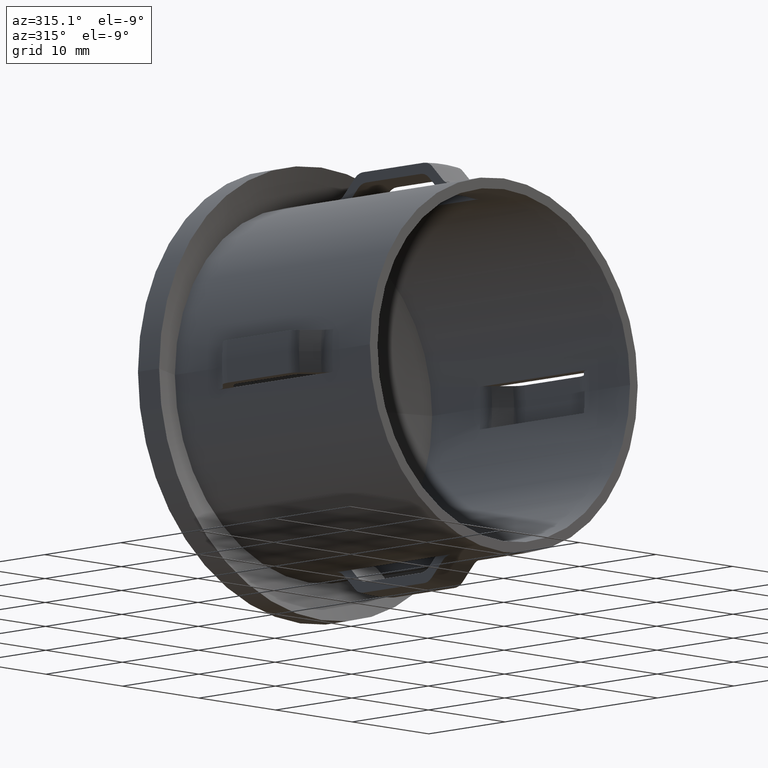
[diagram: clean part render]
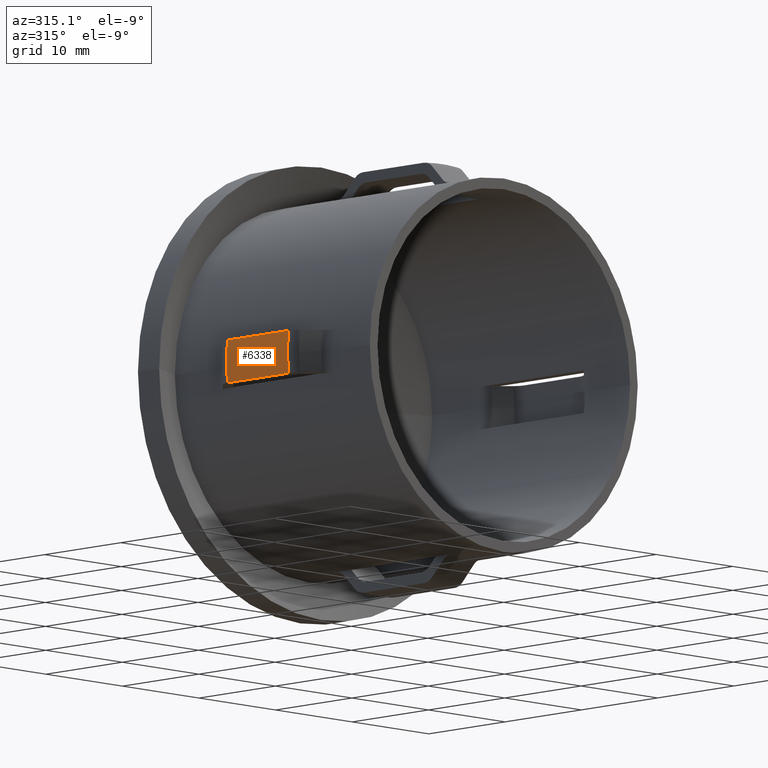
[diagram: same view with one face highlighted and labeled with its STEP entity id]
A machine part, auxiliary view. The second image highlights one B-rep face of the part: STEP entity #6338.
In plain terms, the highlighted cylindrical surface (partial cylindrical patch) has radius 19.8 mm, axis along (-0, -1, -0).
Its self-contained STEP definition (entity closure, byte-faithful):
#94 = CARTESIAN_POINT ( 'NONE',  ( -3.614415669447901900E-014, 16.45735931288076900, 0.0000000000000000000 ) ) ;
#111 = CYLINDRICAL_SURFACE ( 'NONE', #10935, 19.80000000000004700 ) ;
#468 = VERTEX_POINT ( 'NONE', #10562 ) ;
#731 = DIRECTION ( 'NONE',  ( -2.904862207577519400E-015, -1.000000000000000000, -0.0000000000000000000 ) ) ;
#783 = CARTESIAN_POINT ( 'NONE',  ( 0.0000000000000000000, 28.89999999999999500, 0.0000000000000000000 ) ) ;
#874 = AXIS2_PLACEMENT_3D ( 'NONE', #4518, #13183, #12005 ) ;
#953 = CARTESIAN_POINT ( 'NONE',  ( -19.69873092359014100, 16.45735931288071200, 1.999999999999994000 ) ) ;
#1650 = ORIENTED_EDGE ( 'NONE', *, *, #8805, .F. ) ;
#2490 = ORIENTED_EDGE ( 'NONE', *, *, #13213, .T. ) ;
#4490 = CARTESIAN_POINT ( 'NONE',  ( -19.69873092359014100, 20.00000000000000000, 1.999999999999994000 ) ) ;
#4518 = CARTESIAN_POINT ( 'NONE',  ( -5.938305435509916100E-014, 8.457359312880770500, 0.0000000000000000000 ) ) ;
#4572 = EDGE_CURVE ( 'NONE', #468, #9364, #8479, .T. ) ;
#4615 = VERTEX_POINT ( 'NONE', #6753 ) ;
#4685 = CIRCLE ( 'NONE', #7949, 19.80000000000003600 ) ;
#5343 = ORIENTED_EDGE ( 'NONE', *, *, #7463, .F. ) ;
#5573 = CIRCLE ( 'NONE', #874, 19.80000000000005800 ) ;
#5612 = DIRECTION ( 'NONE',  ( 1.000000000000000000, -2.978818090061178600E-015, 0.0000000000000000000 ) ) ;
#6338 = ADVANCED_FACE ( 'NONE', ( #7502 ), #111, .T. ) ;
#6753 = CARTESIAN_POINT ( 'NONE',  ( -19.69873092359014100, 8.457359312880761600, 1.999999999999994000 ) ) ;
#7463 = EDGE_CURVE ( 'NONE', #4615, #9364, #5573, .T. ) ;
#7502 = FACE_OUTER_BOUND ( 'NONE', #9814, .T. ) ;
#7581 = VERTEX_POINT ( 'NONE', #953 ) ;
#7949 = AXIS2_PLACEMENT_3D ( 'NONE', #94, #13163, #5612 ) ;
#8479 = LINE ( 'NONE', #12178, #12076 ) ;
#8805 = EDGE_CURVE ( 'NONE', #7581, #4615, #11934, .T. ) ;
#8844 = CARTESIAN_POINT ( 'NONE',  ( -19.69873092359014100, 8.457359312880761600, -2.000000000000006700 ) ) ;
#9364 = VERTEX_POINT ( 'NONE', #8844 ) ;
#9781 = DIRECTION ( 'NONE',  ( -2.449293598294745400E-017, -1.000000000000000000, -0.0000000000000000000 ) ) ;
#9814 = EDGE_LOOP ( 'NONE', ( #5343, #1650, #2490, #12679 ) ) ;
#10562 = CARTESIAN_POINT ( 'NONE',  ( -19.69873092359014100, 16.45735931288071200, -2.000000000000006700 ) ) ;
#10935 = AXIS2_PLACEMENT_3D ( 'NONE', #783, #731, #12886 ) ;
#11077 = DIRECTION ( 'NONE',  ( -2.449293598294745400E-017, -1.000000000000000000, -0.0000000000000000000 ) ) ;
#11934 = LINE ( 'NONE', #4490, #12087 ) ;
#12005 = DIRECTION ( 'NONE',  ( 1.000000000000000000, -2.891205793294669900E-015, 0.0000000000000000000 ) ) ;
#12076 = VECTOR ( 'NONE', #11077, 1000.000000000000000 ) ;
#12087 = VECTOR ( 'NONE', #9781, 1000.000000000000000 ) ;
#12178 = CARTESIAN_POINT ( 'NONE',  ( -19.69873092359014100, 20.00000000000000000, -2.000000000000006700 ) ) ;
#12679 = ORIENTED_EDGE ( 'NONE', *, *, #4572, .T. ) ;
#12886 = DIRECTION ( 'NONE',  ( 1.000000000000000000, -2.978818090061176700E-015, 0.0000000000000000000 ) ) ;
#13163 = DIRECTION ( 'NONE',  ( -2.904862207577519400E-015, -1.000000000000000000, -0.0000000000000000000 ) ) ;
#13183 = DIRECTION ( 'NONE',  ( -2.904862207577519400E-015, -1.000000000000000000, -0.0000000000000000000 ) ) ;
#13213 = EDGE_CURVE ( 'NONE', #7581, #468, #4685, .T. ) ;